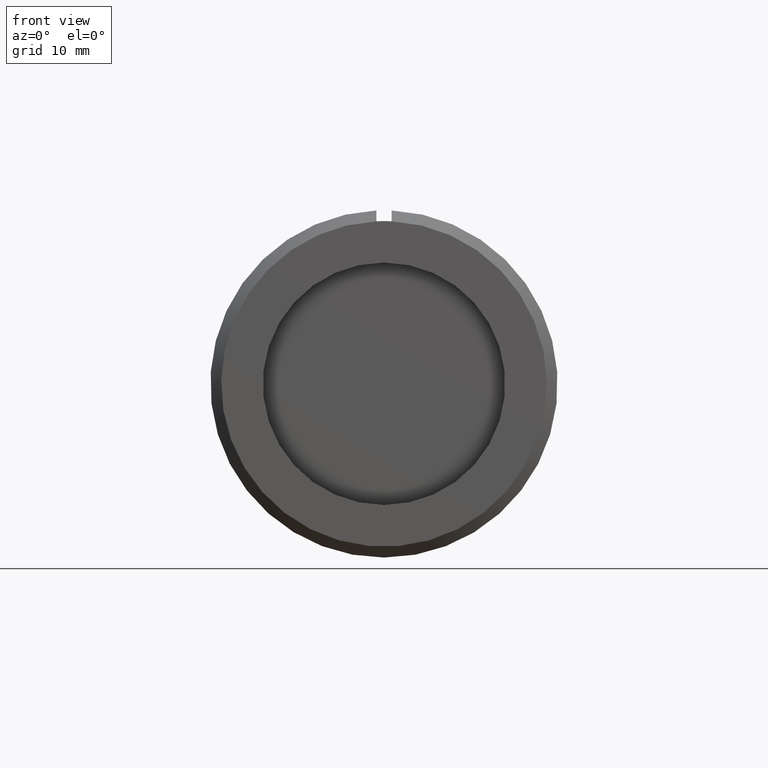
[diagram: clean part render]
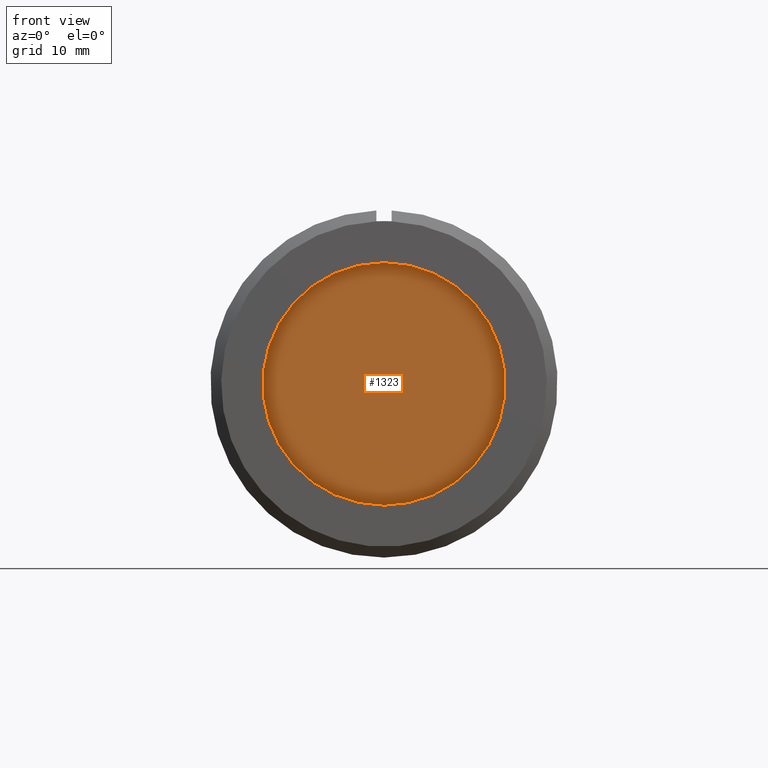
[diagram: same view with one face highlighted and labeled with its STEP entity id]
A machine part, front view. The second image highlights one B-rep face of the part: STEP entity #1323.
In plain terms, the highlighted planar face has unit normal (0, -1, 0).
Its self-contained STEP definition (entity closure, byte-faithful):
#6 = VERTEX_POINT ( 'NONE', #17 ) ;
#17 = CARTESIAN_POINT ( 'NONE',  ( 6.839774837917879664E-17, -1.033357296908698819, 2.378506395338603863 ) ) ;
#96 = CARTESIAN_POINT ( 'NONE',  ( 0.000000000000000000, -1.033357296908698819, 1.261486395338603739 ) ) ;
#152 = FACE_OUTER_BOUND ( 'NONE', #856, .T. ) ;
#313 = DIRECTION ( 'NONE',  ( 0.000000000000000000, 0.000000000000000000, -1.000000000000000000 ) ) ;
#358 = DIRECTION ( 'NONE',  ( 0.000000000000000000, -1.000000000000000000, 0.000000000000000000 ) ) ;
#546 = AXIS2_PLACEMENT_3D ( 'NONE', #1363, #752, #1481 ) ;
#730 = DIRECTION ( 'NONE',  ( 0.000000000000000000, 0.000000000000000000, -1.000000000000000000 ) ) ;
#736 = ORIENTED_EDGE ( 'NONE', *, *, #1399, .T. ) ;
#750 = CIRCLE ( 'NONE', #1227, 0.5585099999999999509 ) ;
#752 = DIRECTION ( 'NONE',  ( 0.000000000000000000, -1.000000000000000000, 0.000000000000000000 ) ) ;
#856 = EDGE_LOOP ( 'NONE', ( #1277, #736 ) ) ;
#993 = PLANE ( 'NONE',  #546 ) ;
#1081 = CARTESIAN_POINT ( 'NONE',  ( 0.000000000000000000, -1.033357296908698819, 1.819996395338603579 ) ) ;
#1158 = CARTESIAN_POINT ( 'NONE',  ( 0.000000000000000000, -1.033357296908698819, 1.819996395338603579 ) ) ;
#1174 = DIRECTION ( 'NONE',  ( 0.000000000000000000, -1.000000000000000000, 0.000000000000000000 ) ) ;
#1183 = AXIS2_PLACEMENT_3D ( 'NONE', #1081, #358, #730 ) ;
#1184 = EDGE_CURVE ( 'NONE', #1497, #6, #1206, .T. ) ;
#1206 = CIRCLE ( 'NONE', #1183, 0.5585099999999999509 ) ;
#1227 = AXIS2_PLACEMENT_3D ( 'NONE', #1158, #1174, #313 ) ;
#1277 = ORIENTED_EDGE ( 'NONE', *, *, #1184, .T. ) ;
#1323 = ADVANCED_FACE ( 'NONE', ( #152 ), #993, .T. ) ;
#1363 = CARTESIAN_POINT ( 'NONE',  ( 0.000000000000000000, -1.033357296908698819, 1.819996395338603579 ) ) ;
#1399 = EDGE_CURVE ( 'NONE', #6, #1497, #750, .T. ) ;
#1481 = DIRECTION ( 'NONE',  ( 0.000000000000000000, -0.000000000000000000, -1.000000000000000000 ) ) ;
#1497 = VERTEX_POINT ( 'NONE', #96 ) ;